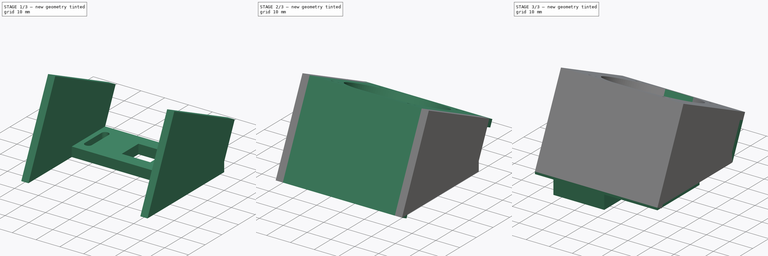
[diagram: build sequence overview — one tinted view per stage of 3, left to right]
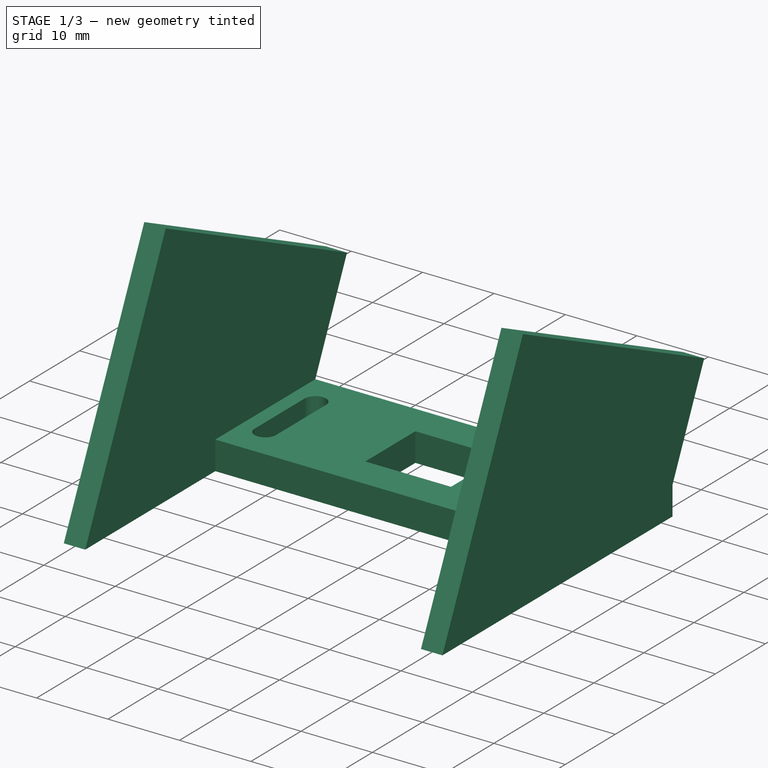
[diagram: stage 1 of 3 — iso view after this stage's code; geometry added in this stage tinted green]
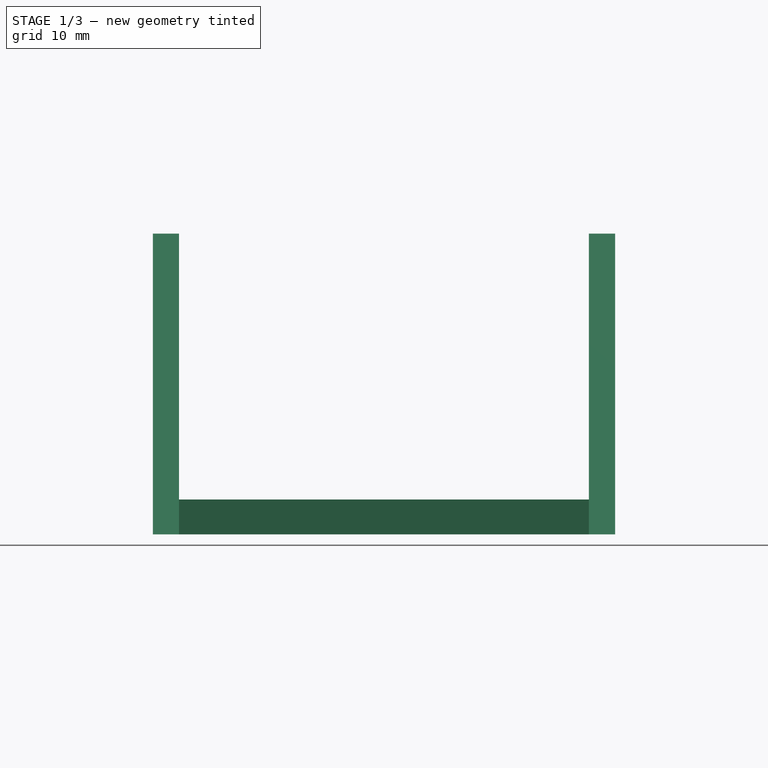
[diagram: stage 1 of 3 — front view after this stage's code; geometry added in this stage tinted green]
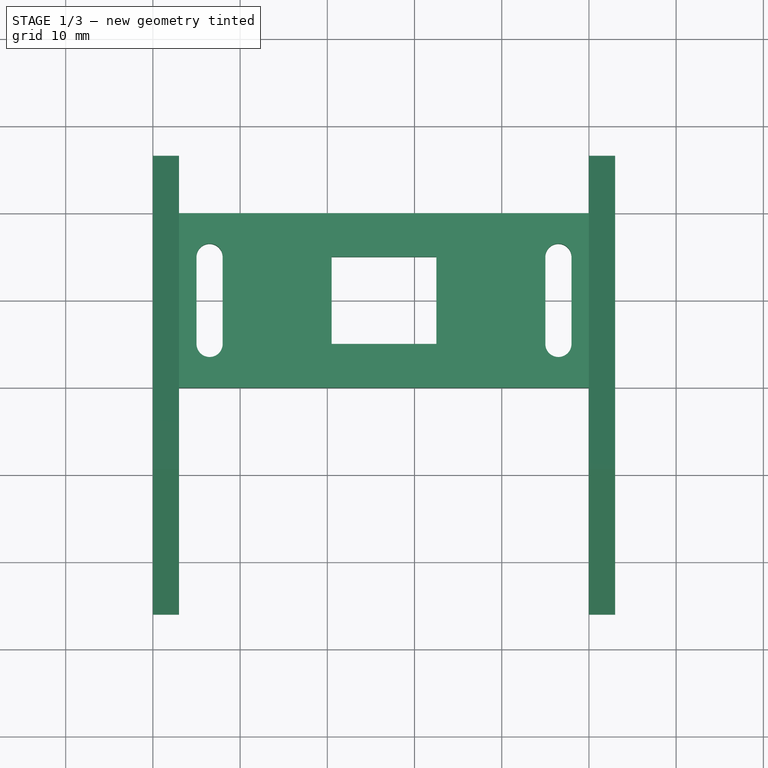
[diagram: stage 1 of 3 — top view after this stage's code; geometry added in this stage tinted green]
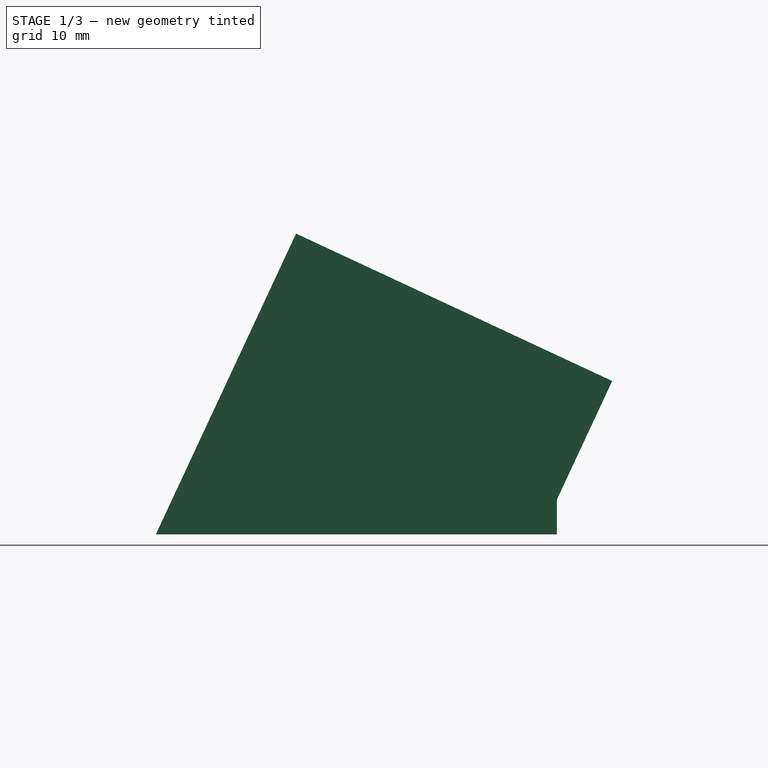
[diagram: stage 1 of 3 — right view after this stage's code; geometry added in this stage tinted green]
FCSTD DOCUMENT  (FreeCAD 0.18.3R)
Label: fanMount
License: All rights reserved
LicenseURL: http://en.wikipedia.org/wiki/All_rights_reserved
objects: Sketcher::SketchObject×8, PartDesign::Pad×8, PartDesign::Body×1
note: 25 computed .brp shape members not serialized (recipe doc carries the construction recipe); baked Part::Feature solids carry a one-line shape summary decoded from their .brp

FEATURE [Sketcher::SketchObject] Sketch
  MapMode = 5
  Support = -> [XY_Plane]
  sketch-geometry (16):
    g0: LineSegment StartX=0 StartY=20 StartZ=0 EndX=0 EndY=0 EndZ=0
    g1: LineSegment StartX=0 StartY=0 StartZ=0 EndX=53 EndY=0 EndZ=0
    g2: LineSegment StartX=53 StartY=0 StartZ=0 EndX=53 EndY=20 EndZ=0
    g3: LineSegment StartX=53 StartY=20 StartZ=0 EndX=0 EndY=20 EndZ=0
    g4: ArcOfCircle CenterX=46.5 CenterY=15 CenterZ=0 NormalX=0 NormalY=0 NormalZ=1 AngleXU=0 Radius=1.5 StartAngle=0 EndAngle=3.14159
    g5: ArcOfCircle CenterX=46.5 CenterY=5 CenterZ=0 NormalX=0 NormalY=0 NormalZ=1 AngleXU=0 Radius=1.5 StartAngle=3.14159 EndAngle=6.28319
    g6: LineSegment StartX=45 StartY=15 StartZ=0 EndX=45 EndY=5 EndZ=0
    g7: LineSegment StartX=48 StartY=15 StartZ=0 EndX=48 EndY=5 EndZ=0
    g8: ArcOfCircle CenterX=6.5 CenterY=15 CenterZ=0 NormalX=0 NormalY=0 NormalZ=1 AngleXU=0 Radius=1.5 StartAngle=4e-16 EndAngle=3.14159
    g9: ArcOfCircle CenterX=6.5 CenterY=5 CenterZ=0 NormalX=0 NormalY=0 NormalZ=1 AngleXU=0 Radius=1.5 StartAngle=3.14159 EndAngle=6.28319
    g10: LineSegment StartX=5 StartY=15 StartZ=0 EndX=5 EndY=5 EndZ=0
    g11: LineSegment StartX=8 StartY=15 StartZ=0 EndX=8 EndY=5 EndZ=0
    g12: LineSegment StartX=20.5 StartY=15 StartZ=0 EndX=32.5 EndY=15 EndZ=0
    g13: LineSegment StartX=32.5 StartY=15 StartZ=0 EndX=32.5 EndY=5 EndZ=0
    g14: LineSegment StartX=32.5 StartY=5 StartZ=0 EndX=20.5 EndY=5 EndZ=0
    g15: LineSegment StartX=20.5 StartY=5 StartZ=0 EndX=20.5 EndY=15 EndZ=0
  constraints (43):
    c: PointOnObject(g0,g-2)
    c: Coincident(g0,g-1)
    c: Coincident(g1,g0)
    c: PointOnObject(g1,g-1)
    c: Coincident(g2,g1)
    c: Vertical(g2)
    c: Coincident(g3,g2)
    c: Coincident(g3,g0)
    c: Horizontal(g3)
    c: Tangent(g4,g7) = 1.5708
    c: Tangent(g4,g6) = -1.5708
    c: Tangent(g6,g5) = -1.5708
    c: Tangent(g7,g5) = 1.5708
    c: Vertical(g6)
    c: Equal(g4,g5)
    c: Tangent(g8,g11) = 1.5708
    c: Tangent(g8,g10) = -1.5708
    c: Tangent(g10,g9) = -1.5708
    c: Tangent(g11,g9) = 1.5708
    c: Vertical(g10)
    c: Equal(g8,g9)
    c: DistanceX(g8,g4) = 40
    c: DistanceX(g5,g5) = 3
    c: DistanceX(g9,g9) = 3
    c: Coincident(g12,g13)
    c: Coincident(g13,g14)
    c: Coincident(g14,g15)
    c: Coincident(g15,g12)
    c: Horizontal(g12)
    c: Horizontal(g14)
    c: Vertical(g13)
    c: Vertical(g15)
    c: Horizontal(g13,g5)
    c: Horizontal(g12,g4)
    c: Horizontal(g8,g12)
    c: Horizontal(g9,g14)
    c: DistanceX(g12,g12) = 12
    c: DistanceX(g12,g4) = 14
    c: DistanceY(g1,g5) = 5
    c: DistanceY(g4,g2) = 5
    c: DistanceX(g0,g9) = 5
    c: DistanceX(g5,g1) = 5
    c: DistanceY(g0,g0) = 20
FEATURE [PartDesign::Pad] Pad
  Length = 4
  Length2 = 100
  Profile = -> Sketch
  Type = 0
FEATURE [Sketcher::SketchObject] Sketch001
  ExternalGeometry = -> [Pad]
  MapMode = 5
  Placement = pos=(0,0,0) rot=(0.57735,-0.57735,-0.57735;2.0944rad)
  Support = -> [Pad]
  sketch-geometry (6):
    g0: LineSegment StartX=-26.3391 StartY=17.5947 StartZ=0 EndX=9.91345 EndY=34.4989 EndZ=0
    g1: LineSegment StartX=-20 StartY=4 StartZ=0 EndX=-26.3391 EndY=17.5947 EndZ=0
    g2: LineSegment StartX=9.91345 StartY=34.4989 StartZ=0 EndX=26 EndY=0 EndZ=0
    g3: LineSegment StartX=26 StartY=0 StartZ=0 EndX=0 EndY=0 EndZ=0
    g4: LineSegment StartX=0 StartY=0 StartZ=0 EndX=0 EndY=4 EndZ=0
    g5: LineSegment StartX=-20 StartY=4 StartZ=0 EndX=0 EndY=4 EndZ=0
  constraints (15):
    c: Coincident(g1,g-3)
    c: Coincident(g1,g0)
    c: Coincident(g2,g0)
    c: Coincident(g3,g-1)
    c: Horizontal(g3)
    c: Coincident(g4,g3)
    c: Coincident(g4,g-3)
    c: Distance(g0,g0) = 40
    c: Angle(g1,g0) = 1.5708
    c: Angle(g0,g2) = 1.5708
    c: DistanceX(g3,g3) = 26
    c: Coincident(g2,g3)
    c: Distance(g0,g1) = 15
    c: Coincident(g5,g1)
    c: Coincident(g5,g4)
FEATURE [PartDesign::Pad] Pad001
  BaseFeature = -> Pad
  Length = 3
  Length2 = 100
  Profile = -> Sketch001
  Reversed = true
  Type = 0
FEATURE [Sketcher::SketchObject] CopySketch002
  Placement = pos=(53,0,0) rot=(-0.57735,0.57735,0.57735;4.18879rad)
  sketch-geometry (6):
    g0: LineSegment StartX=-26.3391 StartY=17.5947 StartZ=0 EndX=9.91345 EndY=34.4989 EndZ=0
    g1: LineSegment StartX=-20 StartY=4 StartZ=0 EndX=-26.3391 EndY=17.5947 EndZ=0
    g2: LineSegment StartX=9.91345 StartY=34.4989 StartZ=0 EndX=26 EndY=0 EndZ=0
    g3: LineSegment StartX=26 StartY=0 StartZ=0 EndX=0 EndY=0 EndZ=0
    g4: LineSegment StartX=0 StartY=0 StartZ=0 EndX=0 EndY=4 EndZ=0
    g5: LineSegment StartX=-20 StartY=4 StartZ=0 EndX=0 EndY=4 EndZ=0
  constraints (13):
    c: Coincident(g1,g0)
    c: Coincident(g2,g0)
    c: Coincident(g3,g-1)
    c: Horizontal(g3)
    c: Coincident(g4,g3)
    c: Distance(g0,g0) = 40
    c: Angle(g1,g0) = 1.5708
    c: Angle(g0,g2) = 1.5708
    c: DistanceX(g3,g3) = 26
    c: Coincident(g2,g3)
    c: Distance(g0,g1) = 15
    c: Coincident(g5,g1)
    c: Coincident(g5,g4)
FEATURE [PartDesign::Pad] Pad002
  BaseFeature = -> Pad001
  Length = 3
  Length2 = 100
  Profile = -> CopySketch002
  Type = 0
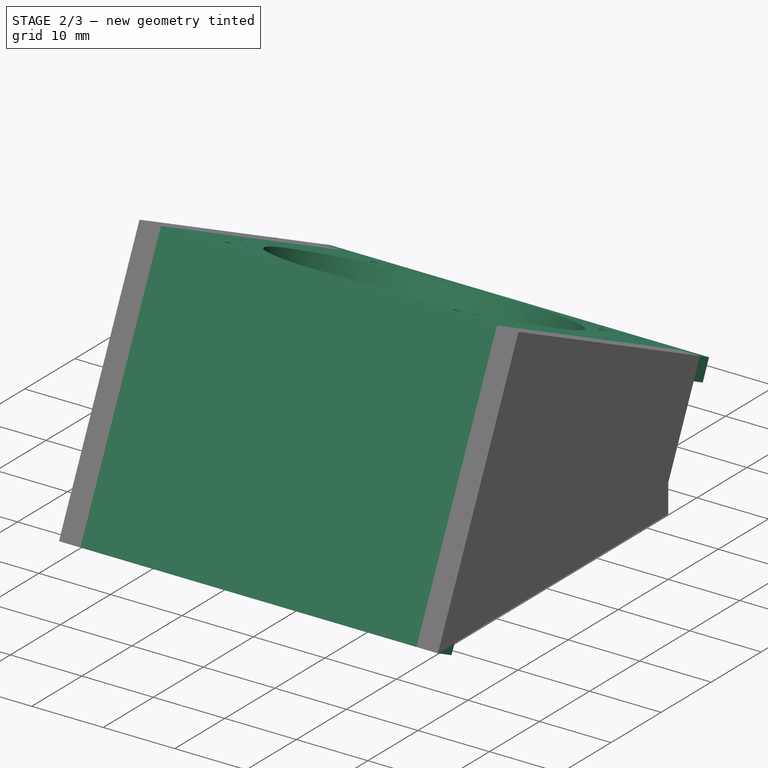
[diagram: stage 2 of 3 — iso view after this stage's code; geometry added in this stage tinted green]
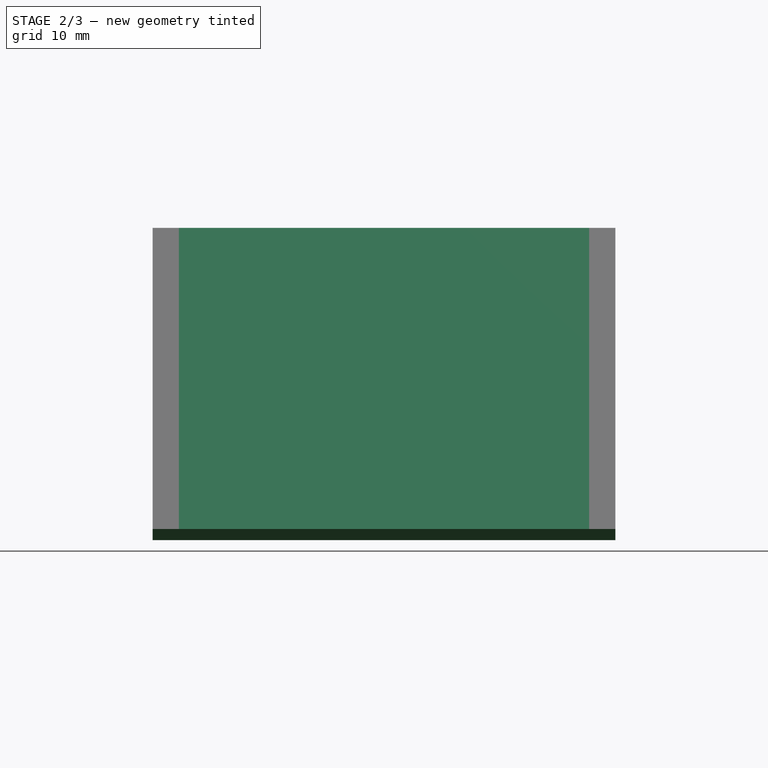
[diagram: stage 2 of 3 — front view after this stage's code; geometry added in this stage tinted green]
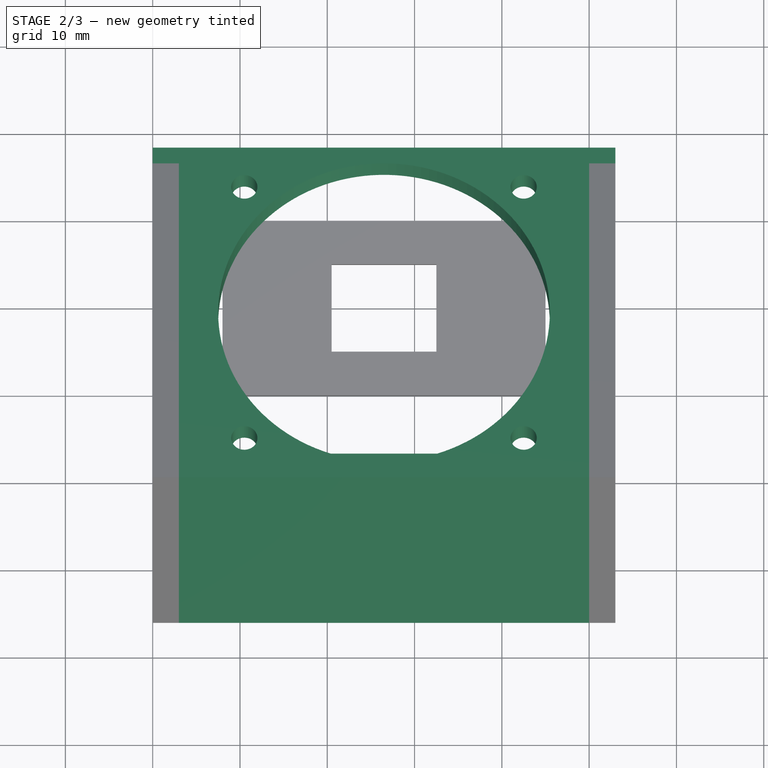
[diagram: stage 2 of 3 — top view after this stage's code; geometry added in this stage tinted green]
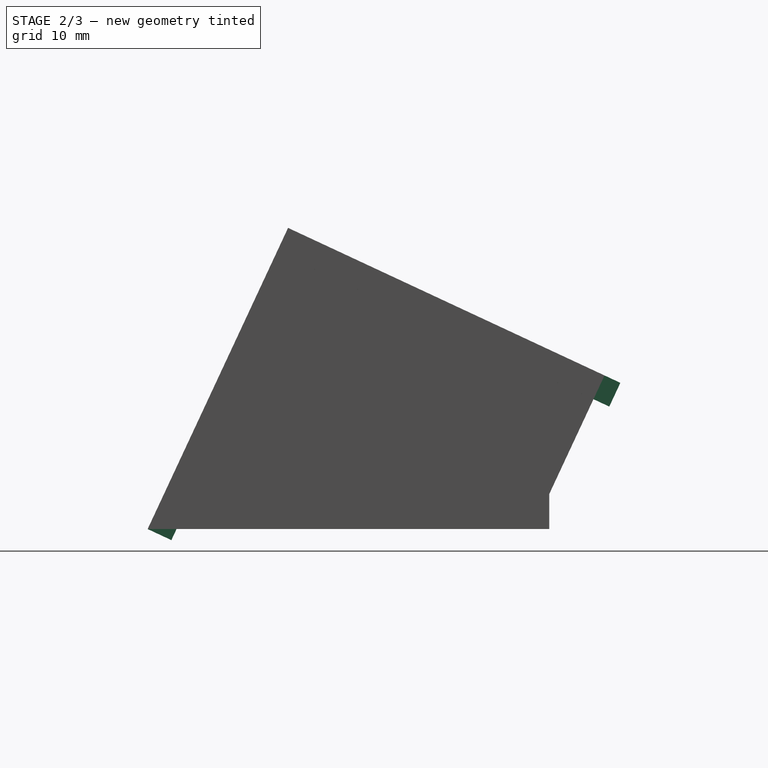
[diagram: stage 2 of 3 — right view after this stage's code; geometry added in this stage tinted green]
FEATURE [Sketcher::SketchObject] Sketch002
  ExternalGeometry = -> [Pad002]
  MapMode = 5
  Placement = pos=(-2.4e-15,-21.3565,9.95835) rot=(1,0,0;1.13448rad)
  Support = -> [Pad002]
  sketch-geometry (4):
    g0: LineSegment StartX=53 StartY=27.0774 StartZ=0 EndX=0 EndY=27.0774 EndZ=0
    g1: LineSegment StartX=0 StartY=27.0774 StartZ=0 EndX=0 EndY=-10.9878 EndZ=0
    g2: LineSegment StartX=0 StartY=-10.9878 StartZ=0 EndX=53 EndY=-10.9878 EndZ=0
    g3: LineSegment StartX=53 StartY=-10.9878 StartZ=0 EndX=53 EndY=27.0774 EndZ=0
  constraints (10):
    c: Coincident(g0,g1)
    c: Coincident(g1,g2)
    c: Coincident(g2,g3)
    c: Coincident(g3,g0)
    c: Horizontal(g0)
    c: Horizontal(g2)
    c: Vertical(g1)
    c: Coincident(g0,g-3)
    c: PointOnObject(g1,g-2)
    c: Coincident(g2,g-3)
FEATURE [PartDesign::Pad] Pad003
  BaseFeature = -> Pad002
  Length = 3
  Length2 = 100
  Profile = -> Sketch002
  Reversed = true
  Type = 0
FEATURE [Sketcher::SketchObject] Sketch003
  ExternalGeometry = -> [Pad003]
  MapMode = 5
  Placement = pos=(1.3e-15,11.4431,24.5406) rot=(-1,0,0;0.436319rad)
  Support = -> [Pad003]
  sketch-geometry (12):
    g0: LineSegment StartX=53 StartY=18.4358 StartZ=0 EndX=0 EndY=18.4358 EndZ=0
    g1: LineSegment StartX=0 StartY=18.4358 StartZ=0 EndX=0 EndY=-23.5642 EndZ=0
    g2: LineSegment StartX=0 StartY=-23.5642 StartZ=0 EndX=53 EndY=-23.5642 EndZ=0
    g3: LineSegment StartX=53 StartY=-23.5642 StartZ=0 EndX=53 EndY=18.4358 EndZ=0
    g4: Circle CenterX=26.5 CenterY=-2.56415 CenterZ=0 NormalX=0 NormalY=0 NormalZ=1 AngleXU=0 Radius=19
    g5: Circle CenterX=42.5 CenterY=13.4358 CenterZ=0 NormalX=0 NormalY=0 NormalZ=1 AngleXU=0 Radius=1.5
    g6: Circle CenterX=10.5 CenterY=13.4358 CenterZ=0 NormalX=0 NormalY=0 NormalZ=1 AngleXU=0 Radius=1.5
    g7: Circle CenterX=10.5 CenterY=-18.5642 CenterZ=0 NormalX=0 NormalY=0 NormalZ=1 AngleXU=0 Radius=1.5
    g8: Circle CenterX=42.5 CenterY=-18.5642 CenterZ=0 NormalX=0 NormalY=0 NormalZ=1 AngleXU=0 Radius=1.5
    g9: LineSegment [constr] StartX=26.5 StartY=-2.56415 StartZ=0 EndX=42.5 EndY=13.4358 EndZ=0
    g10: LineSegment [constr] StartX=26.5 StartY=-2.56415 StartZ=0 EndX=10.5 EndY=-18.5642 EndZ=0
    g11: LineSegment [constr] StartX=26.5 StartY=-2.56415 StartZ=0 EndX=42.5 EndY=-18.5642 EndZ=0
  constraints (32):
    c: Coincident(g0,g1)
    c: Coincident(g1,g2)
    c: Coincident(g2,g3)
    c: Horizontal(g0)
    c: Horizontal(g2)
    c: Vertical(g1)
    c: Vertical(g3)
    c: Coincident(g1,g-5)
    c: DistanceX(g1,g4) = 26.5
    c: Diameter(g4) = 38
    c: Coincident(g3,g0)
    c: DistanceY(g-3,g0) = 2
    c: Vertical(g-3,g0)
    c: DistanceY(g2,g4) = 21
    c: DistanceY(g8,g5) = 32
    c: Horizontal(g8,g7)
    c: Horizontal(g6,g5)
    c: Vertical(g7,g6)
    c: DistanceX(g7,g8) = 32
    c: Vertical(g8,g5)
    c: Coincident(g9,g4)
    c: Coincident(g9,g5)
    c: Coincident(g10,g4)
    c: Coincident(g10,g7)
    c: Equal(g9,g10)
    c: Coincident(g11,g4)
    c: Coincident(g11,g8)
    c: Equal(g11,g9)
    c: Diameter(g5) = 3
    c: Equal(g5,g8)
    c: Equal(g8,g7)
    c: Equal(g7,g6)
FEATURE [PartDesign::Pad] Pad004
  BaseFeature = -> Pad003
  Length = 3
  Length2 = 100
  Profile = -> Sketch003
  Reversed = true
  Type = 0
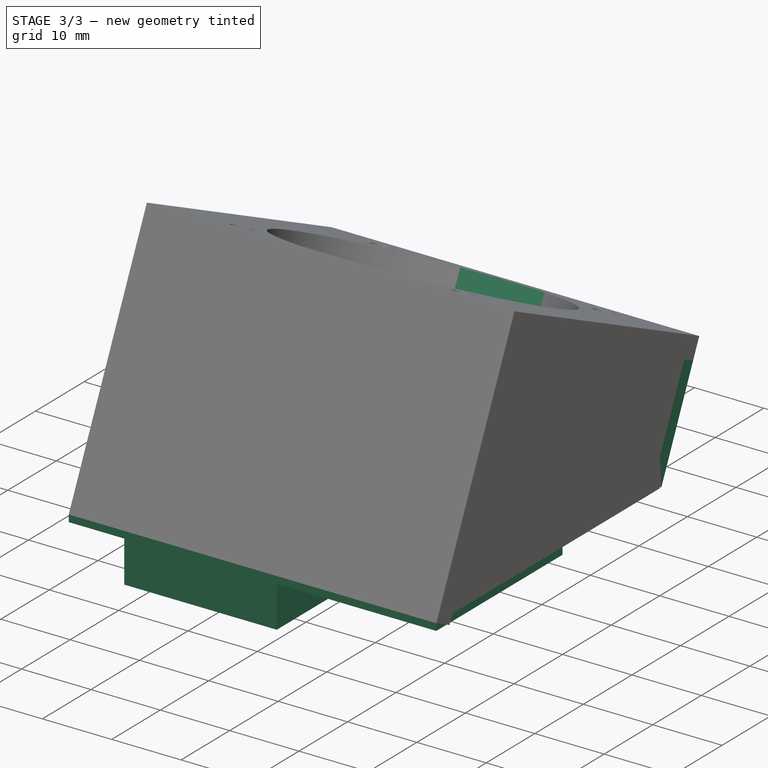
[diagram: stage 3 of 3 — iso view after this stage's code; geometry added in this stage tinted green]
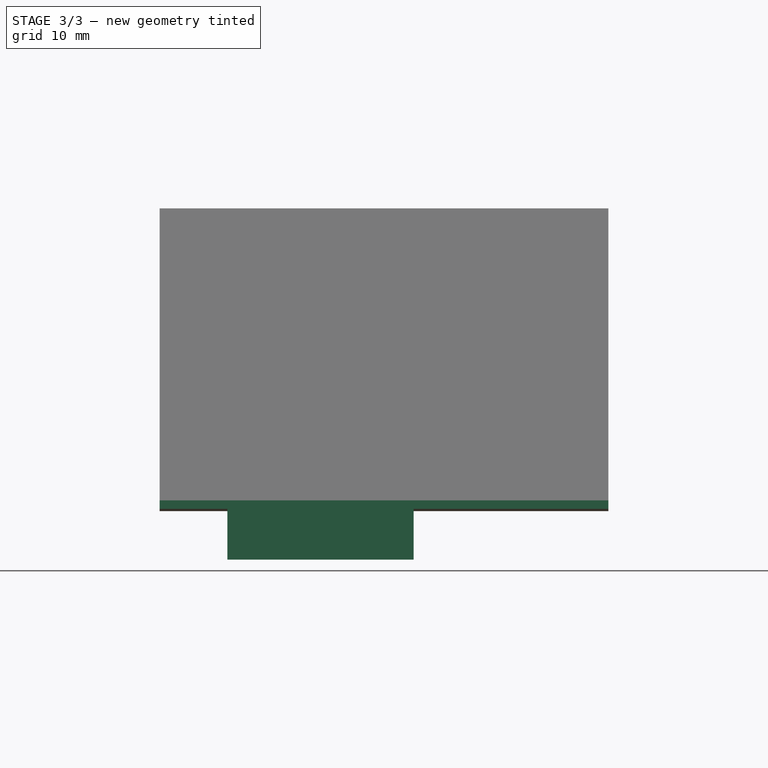
[diagram: stage 3 of 3 — front view after this stage's code; geometry added in this stage tinted green]
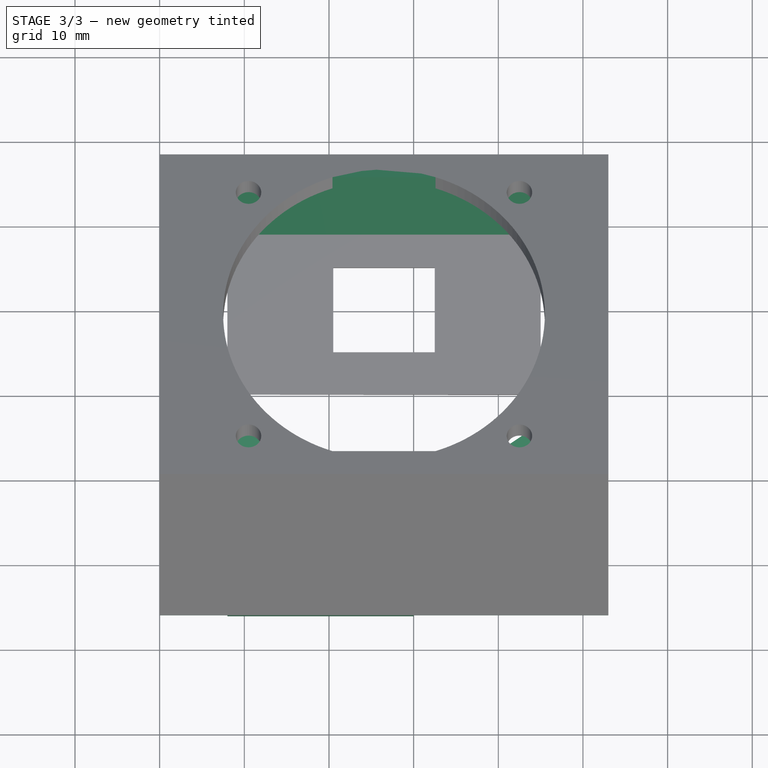
[diagram: stage 3 of 3 — top view after this stage's code; geometry added in this stage tinted green]
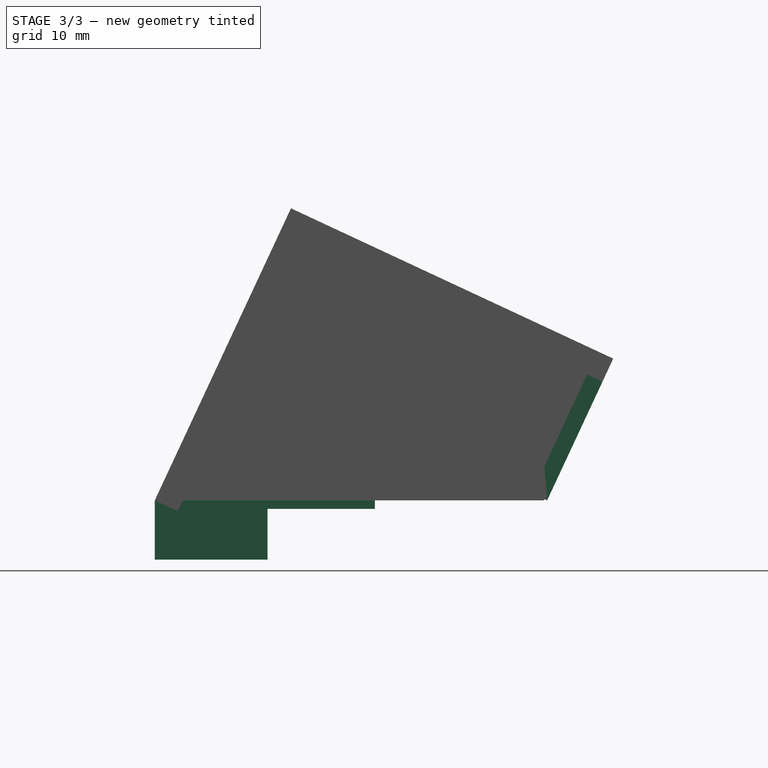
[diagram: stage 3 of 3 — right view after this stage's code; geometry added in this stage tinted green]
FEATURE [Sketcher::SketchObject] Sketch004
  ExternalGeometry = -> [Pad004]
  MapMode = 5
  Placement = pos=(0,16.7087,-7.7911) rot=(0,0.843388,0.537305;3.14159rad)
  Support = -> [Pad004]
  sketch-geometry (4):
    g0: LineSegment StartX=0 StartY=27.0774 StartZ=0 EndX=-53 EndY=27.0774 EndZ=0
    g1: LineSegment StartX=-53 StartY=27.0774 StartZ=0 EndX=-53 EndY=8.59737 EndZ=0
    g2: LineSegment StartX=-53 StartY=8.59737 StartZ=0 EndX=0 EndY=8.59737 EndZ=0
    g3: LineSegment StartX=0 StartY=8.59737 StartZ=0 EndX=0 EndY=27.0774 EndZ=0
  constraints (10):
    c: Coincident(g0,g1)
    c: Coincident(g1,g2)
    c: Coincident(g2,g3)
    c: Coincident(g3,g0)
    c: Horizontal(g2)
    c: Vertical(g1)
    c: Vertical(g3)
    c: Coincident(g0,g-3)
    c: Coincident(g-3,g0)
    c: DistanceY(g1,g0) = 18.48
FEATURE [PartDesign::Pad] Pad005
  BaseFeature = -> Pad004
  Length = 3
  Length2 = 100
  Profile = -> Sketch004
  Reversed = true
  Type = 0
FEATURE [Sketcher::SketchObject] Sketch005
  ExternalGeometry = -> [Pad005]
  MapMode = 5
  Placement = pos=(0,0,0) rot=(1,0,0;3.14159rad)
  Support = -> [Pad005]
  sketch-geometry (8):
    g0: LineSegment StartX=53 StartY=0 StartZ=0 EndX=0 EndY=0 EndZ=0
    g1: LineSegment StartX=0 StartY=0 StartZ=0 EndX=0 EndY=26 EndZ=0
    g2: LineSegment StartX=0 StartY=26 StartZ=0 EndX=53 EndY=26 EndZ=0
    g3: LineSegment StartX=53 StartY=26 StartZ=0 EndX=53 EndY=0 EndZ=0
    g4: LineSegment StartX=28 StartY=22.6899 StartZ=0 EndX=10 EndY=22.6899 EndZ=0
    g5: LineSegment StartX=10 StartY=22.6899 StartZ=0 EndX=10 EndY=14.6899 EndZ=0
    g6: LineSegment StartX=10 StartY=14.6899 StartZ=0 EndX=28 EndY=14.6899 EndZ=0
    g7: LineSegment StartX=28 StartY=14.6899 StartZ=0 EndX=28 EndY=22.6899 EndZ=0
  constraints (21):
    c: Coincident(g0,g1)
    c: Coincident(g1,g2)
    c: Coincident(g2,g3)
    c: Coincident(g3,g0)
    c: Horizontal(g2)
    c: Vertical(g1)
    c: Coincident(g0,g-3)
    c: Coincident(g2,g-4)
    c: Coincident(g0,g-1)
    c: Coincident(g4,g5)
    c: Coincident(g5,g6)
    c: Coincident(g6,g7)
    c: Coincident(g7,g4)
    c: Horizontal(g4)
    c: Horizontal(g6)
    c: Vertical(g5)
    c: Vertical(g7)
    c: Horizontal(g4,g-3)
    c: DistanceY(g6,g4) = 8
    c: DistanceX(g6,g-4) = 25
    c: DistanceX(g-6,g5) = 10
FEATURE [PartDesign::Pad] Pad006
  BaseFeature = -> Pad005
  Length = 1
  Length2 = 100
  Profile = -> Sketch005
  Type = 0
FEATURE [Sketcher::SketchObject] Sketch006
  ExternalGeometry = -> [Pad006]
  MapMode = 5
  Placement = pos=(0,0,-1) rot=(1,0,0;3.14159rad)
  Support = -> [Pad006]
  sketch-geometry (8):
    g0: LineSegment StartX=10 StartY=14.6899 StartZ=0 EndX=28 EndY=14.6899 EndZ=0
    g1: LineSegment StartX=28 StartY=14.6899 StartZ=0 EndX=28 EndY=24 EndZ=0
    g2: LineSegment StartX=28 StartY=24 StartZ=0 EndX=10 EndY=24 EndZ=0
    g3: LineSegment StartX=10 StartY=24 StartZ=0 EndX=10 EndY=14.6899 EndZ=0
    g4: LineSegment StartX=8 StartY=26 StartZ=0 EndX=30 EndY=26 EndZ=0
    g5: LineSegment StartX=30 StartY=26 StartZ=0 EndX=30 EndY=12.6899 EndZ=0
    g6: LineSegment StartX=30 StartY=12.6899 StartZ=0 EndX=8 EndY=12.6899 EndZ=0
    g7: LineSegment StartX=8 StartY=12.6899 StartZ=0 EndX=8 EndY=26 EndZ=0
  constraints (22):
    c: Coincident(g0,g1)
    c: Coincident(g1,g2)
    c: Coincident(g2,g3)
    c: Coincident(g3,g0)
    c: Horizontal(g2)
    c: Vertical(g1)
    c: Vertical(g3)
    c: Coincident(g0,g-3)
    c: Coincident(g4,g5)
    c: Coincident(g5,g6)
    c: Coincident(g6,g7)
    c: Coincident(g7,g4)
    c: Horizontal(g4)
    c: Horizontal(g6)
    c: Vertical(g5)
    c: Vertical(g7)
    c: PointOnObject(g4,g-4)
    c: DistanceX(g1,g4) = 2
    c: DistanceX(g4,g2) = 2
    c: DistanceY(g6,g0) = 2
    c: Coincident(g-3,g0)
    c: DistanceY(g1,g4) = 2
FEATURE [PartDesign::Pad] Pad007
  BaseFeature = -> Pad006
  Length = 6
  Length2 = 100
  Profile = -> Sketch006
  Type = 0
FEATURE [PartDesign::Body] Body
  Group = -> [Sketch,Pad,Sketch001,Pad001,Pad002,Sketch002,Pad003,Sketch003,Pad004,Sketch004,Pad005,Sketch005,Pad006,Sketch006,Pad007]
  Origin = -> Origin
  Tip = -> Pad007
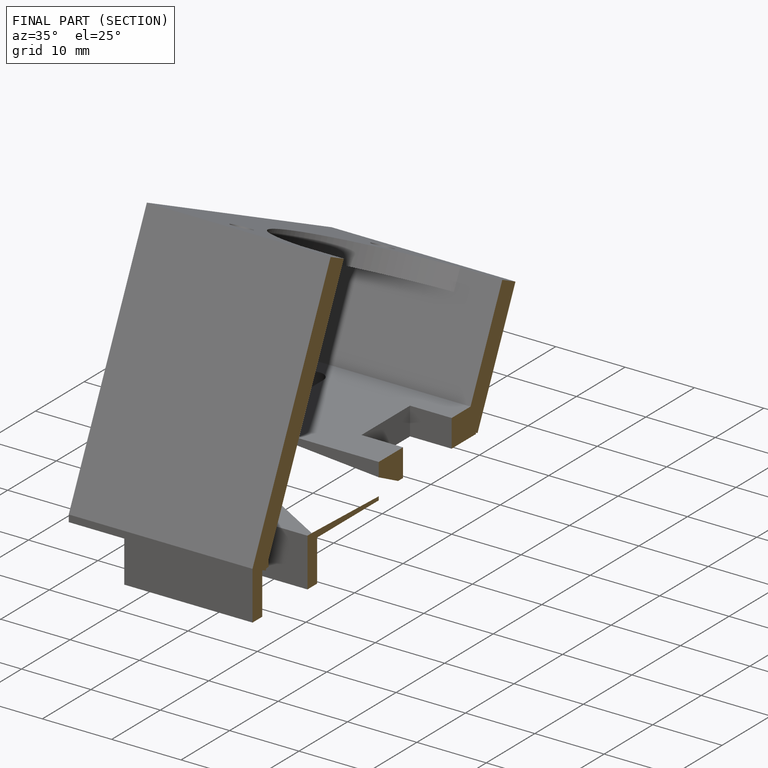
[diagram: finished part — half-section view (interior)]
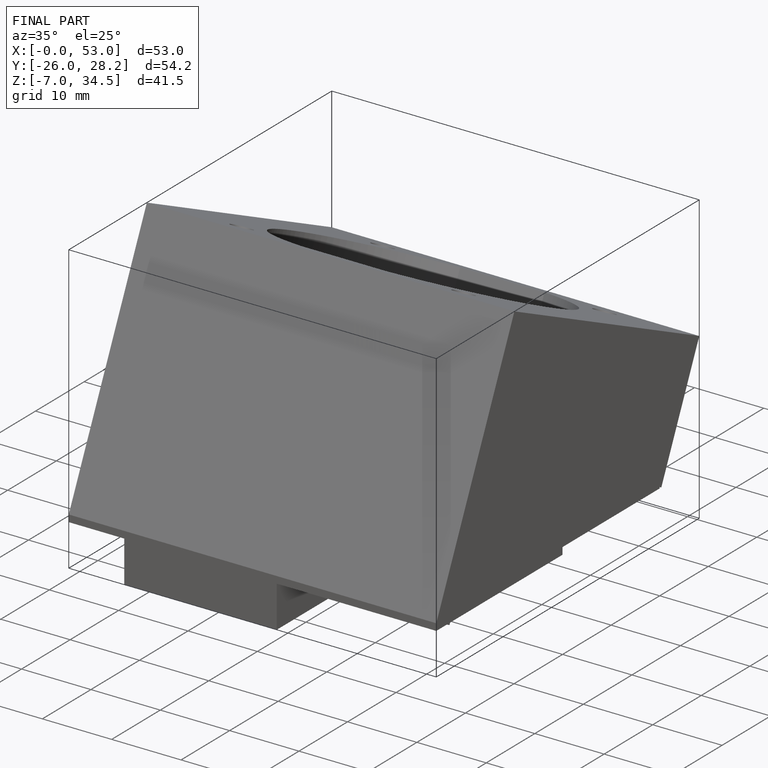
[diagram: finished part — iso view with bounding-box wireframe]
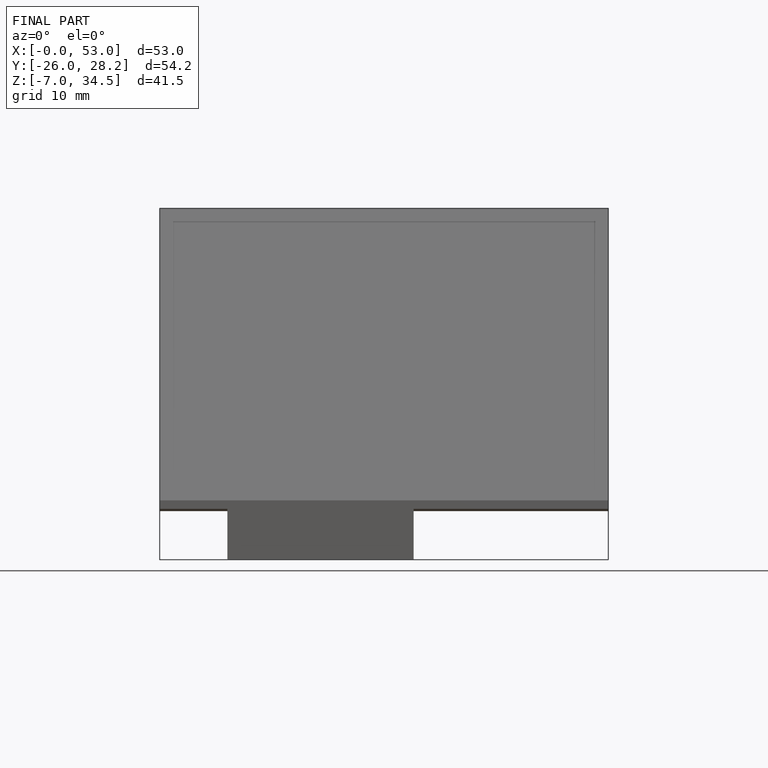
[diagram: finished part — front view with bounding-box wireframe]
